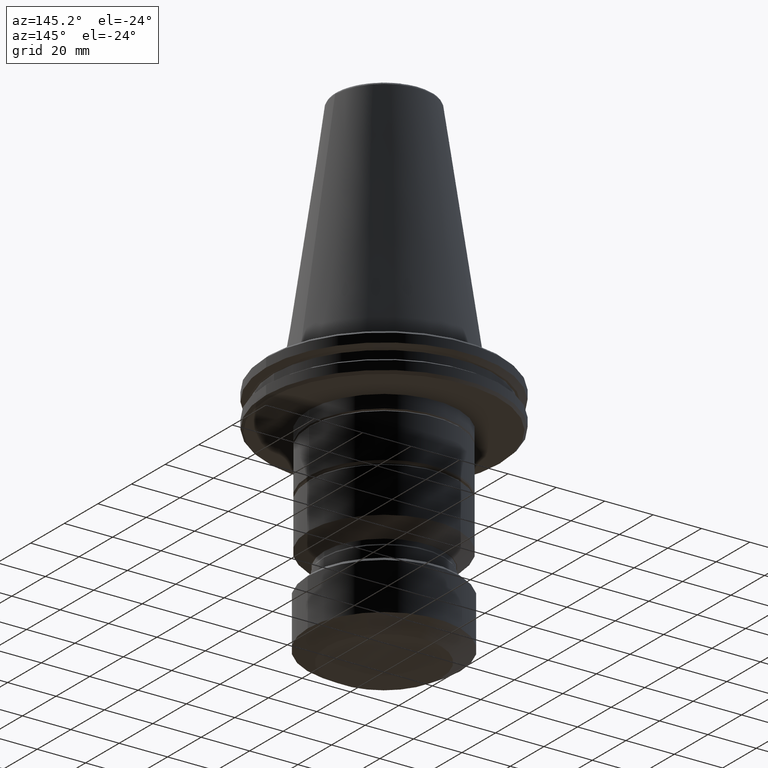
[diagram: clean part render]
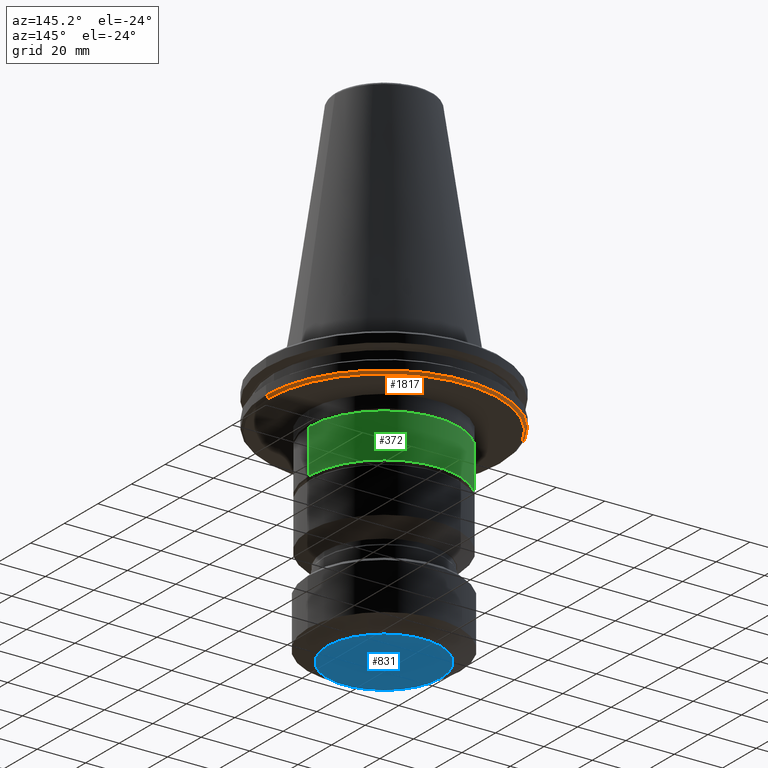
[diagram: same view with three faces highlighted in distinct colors, each labeled with its STEP entity id]
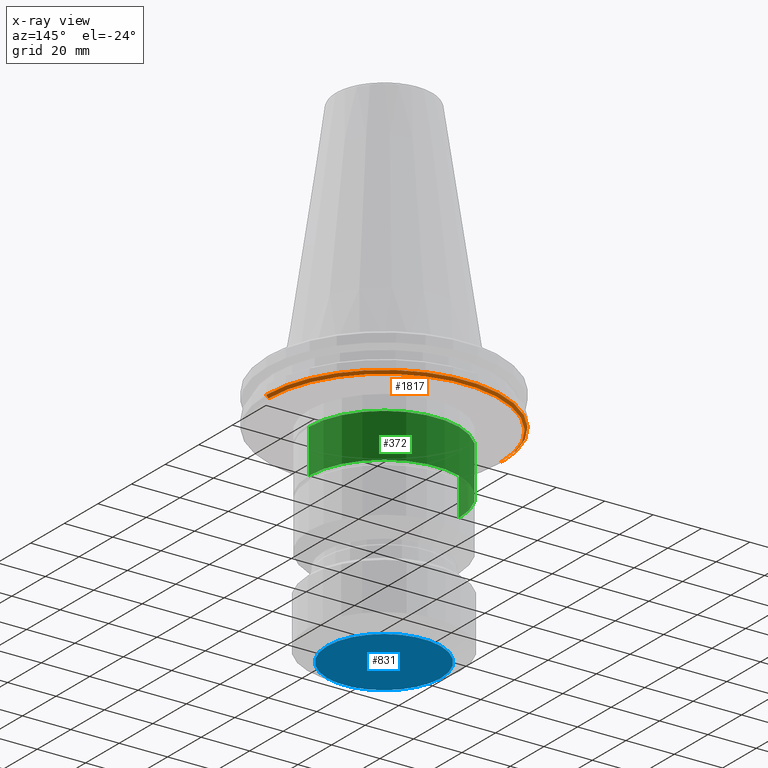
[diagram: x-ray of the same camera — body ghosted, the three highlighted faces saturated]
A machine part, auxiliary view with three faces highlighted in distinct colors.
The next image is the same camera in x-ray (body ghosted, the three faces saturated) — at least one of them is partly hidden behind the body in this view.
Their STEP definitions:

[orange] entity #1817 — the highlighted conical surface has half-angle 45 deg.
#114 = EDGE_CURVE ( 'NONE', #209, #1577, #979, .T. ) ;
#171 = FACE_OUTER_BOUND ( 'NONE', #1070, .T. ) ;
#182 = AXIS2_PLACEMENT_3D ( 'NONE', #1818, #1677, #1766 ) ;
#198 = CIRCLE ( 'NONE', #580, 48.75000000000105900 ) ;
#209 = VERTEX_POINT ( 'NONE', #1060 ) ;
#238 = VECTOR ( 'NONE', #965, 1000.000000000000000 ) ;
#304 = CARTESIAN_POINT ( 'NONE',  ( 48.75000000000117200, 0.0000000000000000000, -18.09999999999882500 ) ) ;
#357 = DIRECTION ( 'NONE',  ( 0.7071067811865506800, 0.0000000000000000000, 0.7071067811865443500 ) ) ;
#580 = AXIS2_PLACEMENT_3D ( 'NONE', #1897, #1903, #1904 ) ;
#608 = DIRECTION ( 'NONE',  ( 0.0000000000000000000, 1.000000000000000000, -1.395044638272431400E-014 ) ) ;
#610 = DIRECTION ( 'NONE',  ( -0.0000000000000000000, -1.396485640209059400E-014, -1.000000000000000000 ) ) ;
#612 = CARTESIAN_POINT ( 'NONE',  ( 0.0000000000000000000, 3.388131798329273300E-018, -19.09999999999933700 ) ) ;
#640 = EDGE_CURVE ( 'NONE', #209, #1699, #771, .T. ) ;
#771 = CIRCLE ( 'NONE', #1256, 47.75000000000056800 ) ;
#871 = ORIENTED_EDGE ( 'NONE', *, *, #1228, .F. ) ;
#965 = DIRECTION ( 'NONE',  ( -0.7071067811865506800, 8.659560562354971100E-017, 0.7071067811865443500 ) ) ;
#976 = CARTESIAN_POINT ( 'NONE',  ( -48.63284271247462700, 5.955805516126872900E-015, -18.21715728752537400 ) ) ;
#979 = LINE ( 'NONE', #976, #238 ) ;
#1054 = LINE ( 'NONE', #1752, #1206 ) ;
#1060 = CARTESIAN_POINT ( 'NONE',  ( -47.75000000000056800, 5.908920805891360400E-015, -19.09999999999933700 ) ) ;
#1070 = EDGE_LOOP ( 'NONE', ( #1513, #1892, #1957, #871 ) ) ;
#1096 = CONICAL_SURFACE ( 'NONE', #182, 48.63284271247462700, 0.7853981633974528300 ) ;
#1206 = VECTOR ( 'NONE', #357, 1000.000000000000000 ) ;
#1228 = EDGE_CURVE ( 'NONE', #1699, #1531, #1054, .T. ) ;
#1256 = AXIS2_PLACEMENT_3D ( 'NONE', #612, #610, #608 ) ;
#1505 = CARTESIAN_POINT ( 'NONE',  ( 47.75000000000056800, 5.281085729656778700E-027, -19.09999999999933700 ) ) ;
#1513 = ORIENTED_EDGE ( 'NONE', *, *, #640, .F. ) ;
#1531 = VERTEX_POINT ( 'NONE', #304 ) ;
#1577 = VERTEX_POINT ( 'NONE', #1973 ) ;
#1613 = EDGE_CURVE ( 'NONE', #1577, #1531, #198, .T. ) ;
#1677 = DIRECTION ( 'NONE',  ( 0.0000000000000000000, 0.0000000000000000000, 1.000000000000000000 ) ) ;
#1699 = VERTEX_POINT ( 'NONE', #1505 ) ;
#1752 = CARTESIAN_POINT ( 'NONE',  ( 48.63284271247462700, 0.0000000000000000000, -18.21715728752537400 ) ) ;
#1766 = DIRECTION ( 'NONE',  ( 1.000000000000000000, 0.0000000000000000000, 0.0000000000000000000 ) ) ;
#1817 = ADVANCED_FACE ( 'NONE', ( #171 ), #1096, .T. ) ;
#1818 = CARTESIAN_POINT ( 'NONE',  ( 0.0000000000000000000, 0.0000000000000000000, -18.21715728752537400 ) ) ;
#1892 = ORIENTED_EDGE ( 'NONE', *, *, #114, .T. ) ;
#1897 = CARTESIAN_POINT ( 'NONE',  ( 0.0000000000000000000, 1.396824453389606200E-014, -18.09999999999882500 ) ) ;
#1903 = DIRECTION ( 'NONE',  ( -0.0000000000000000000, -1.396485640209059400E-014, -1.000000000000000000 ) ) ;
#1904 = DIRECTION ( 'NONE',  ( 0.0000000000000000000, 1.000000000000000000, -1.394895595041833000E-014 ) ) ;
#1957 = ORIENTED_EDGE ( 'NONE', *, *, #1613, .T. ) ;
#1973 = CARTESIAN_POINT ( 'NONE',  ( -48.75000000000117200, 5.970153145843490700E-015, -18.09999999999882500 ) ) ;

[blue] entity #831 — the highlighted planar face has unit normal (-0, 0, -1).
#46 = VERTEX_POINT ( 'NONE', #1202 ) ;
#267 = VERTEX_POINT ( 'NONE', #995 ) ;
#342 = DIRECTION ( 'NONE',  ( -1.000000000000000000, 0.0000000000000000000, 0.0000000000000000000 ) ) ;
#344 = DIRECTION ( 'NONE',  ( -0.0000000000000000000, 0.0000000000000000000, -1.000000000000000000 ) ) ;
#355 = PLANE ( 'NONE',  #477 ) ;
#360 = CARTESIAN_POINT ( 'NONE',  ( 0.0000000000000000000, 0.0000000000000000000, -105.0000000000000100 ) ) ;
#364 = EDGE_LOOP ( 'NONE', ( #744, #565 ) ) ;
#433 = FACE_OUTER_BOUND ( 'NONE', #364, .T. ) ;
#463 = DIRECTION ( 'NONE',  ( -1.000000000000000000, 0.0000000000000000000, 0.0000000000000000000 ) ) ;
#466 = DIRECTION ( 'NONE',  ( -0.0000000000000000000, -0.0000000000000000000, -1.000000000000000000 ) ) ;
#469 = CARTESIAN_POINT ( 'NONE',  ( 0.0000000000000000000, 0.0000000000000000000, -105.0000000000000100 ) ) ;
#477 = AXIS2_PLACEMENT_3D ( 'NONE', #360, #344, #342 ) ;
#515 = DIRECTION ( 'NONE',  ( -1.000000000000000000, 0.0000000000000000000, 0.0000000000000000000 ) ) ;
#519 = DIRECTION ( 'NONE',  ( -0.0000000000000000000, -0.0000000000000000000, -1.000000000000000000 ) ) ;
#523 = CARTESIAN_POINT ( 'NONE',  ( 0.0000000000000000000, 0.0000000000000000000, -105.0000000000000100 ) ) ;
#550 = AXIS2_PLACEMENT_3D ( 'NONE', #469, #466, #463 ) ;
#565 = ORIENTED_EDGE ( 'NONE', *, *, #745, .T. ) ;
#688 = EDGE_CURVE ( 'NONE', #267, #46, #708, .T. ) ;
#708 = CIRCLE ( 'NONE', #1985, 23.50000000000000000 ) ;
#744 = ORIENTED_EDGE ( 'NONE', *, *, #688, .T. ) ;
#745 = EDGE_CURVE ( 'NONE', #46, #267, #1785, .T. ) ;
#831 = ADVANCED_FACE ( 'NONE', ( #433 ), #355, .T. ) ;
#995 = CARTESIAN_POINT ( 'NONE',  ( 23.50000000000000000, 0.0000000000000000000, -105.0000000000000100 ) ) ;
#1202 = CARTESIAN_POINT ( 'NONE',  ( -23.50000000000000000, 3.367778697655221700E-015, -105.0000000000000100 ) ) ;
#1785 = CIRCLE ( 'NONE', #550, 23.50000000000000000 ) ;
#1985 = AXIS2_PLACEMENT_3D ( 'NONE', #523, #519, #515 ) ;

[green] entity #372 — the highlighted cylindrical surface (partial cylindrical patch) has radius 31 mm, axis along (-0, -0, -1).
#21 = VERTEX_POINT ( 'NONE', #1434 ) ;
#50 = VECTOR ( 'NONE', #1975, 1000.000000000000000 ) ;
#88 = AXIS2_PLACEMENT_3D ( 'NONE', #1741, #308, #1598 ) ;
#97 = LINE ( 'NONE', #480, #150 ) ;
#147 = LINE ( 'NONE', #1913, #50 ) ;
#150 = VECTOR ( 'NONE', #479, 1000.000000000000000 ) ;
#308 = DIRECTION ( 'NONE',  ( -0.0000000000000000000, -0.0000000000000000000, -1.000000000000000000 ) ) ;
#315 = CIRCLE ( 'NONE', #88, 31.00000000000023400 ) ;
#331 = VERTEX_POINT ( 'NONE', #948 ) ;
#335 = ORIENTED_EDGE ( 'NONE', *, *, #1507, .F. ) ;
#372 = ADVANCED_FACE ( 'NONE', ( #1400 ), #1164, .T. ) ;
#393 = ORIENTED_EDGE ( 'NONE', *, *, #1638, .F. ) ;
#455 = EDGE_CURVE ( 'NONE', #1727, #331, #1999, .T. ) ;
#479 = DIRECTION ( 'NONE',  ( -0.0000000000000000000, -0.0000000000000000000, -1.000000000000000000 ) ) ;
#480 = CARTESIAN_POINT ( 'NONE',  ( 31.00000000000024200, 3.796405077356824300E-015, -105.0000000000000000 ) ) ;
#483 = ORIENTED_EDGE ( 'NONE', *, *, #455, .T. ) ;
#748 = EDGE_CURVE ( 'NONE', #331, #21, #97, .T. ) ;
#821 = DIRECTION ( 'NONE',  ( -1.000000000000000000, 0.0000000000000000000, 0.0000000000000000000 ) ) ;
#824 = DIRECTION ( 'NONE',  ( -0.0000000000000000000, -0.0000000000000000000, -1.000000000000000000 ) ) ;
#826 = CARTESIAN_POINT ( 'NONE',  ( 0.0000000000000000000, 0.0000000000000000000, -25.39999999999867300 ) ) ;
#890 = DIRECTION ( 'NONE',  ( -0.0000000000000000000, -0.0000000000000000000, -1.000000000000000000 ) ) ;
#897 = CARTESIAN_POINT ( 'NONE',  ( 0.0000000000000000000, 0.0000000000000000000, -105.0000000000000000 ) ) ;
#898 = DIRECTION ( 'NONE',  ( -1.000000000000000000, 0.0000000000000000000, 0.0000000000000000000 ) ) ;
#948 = CARTESIAN_POINT ( 'NONE',  ( 31.00000000000024900, 3.796405077356825100E-015, -25.39999999999867300 ) ) ;
#1128 = ORIENTED_EDGE ( 'NONE', *, *, #748, .T. ) ;
#1164 = CYLINDRICAL_SURFACE ( 'NONE', #1387, 31.00000000000024200 ) ;
#1262 = VERTEX_POINT ( 'NONE', #1717 ) ;
#1276 = EDGE_LOOP ( 'NONE', ( #483, #1128, #335, #393 ) ) ;
#1387 = AXIS2_PLACEMENT_3D ( 'NONE', #897, #890, #898 ) ;
#1400 = FACE_OUTER_BOUND ( 'NONE', #1276, .T. ) ;
#1434 = CARTESIAN_POINT ( 'NONE',  ( 31.00000000000023400, 0.0000000000000000000, -43.59999999999889300 ) ) ;
#1507 = EDGE_CURVE ( 'NONE', #1262, #21, #315, .T. ) ;
#1545 = CARTESIAN_POINT ( 'NONE',  ( -31.00000000000024900, 0.0000000000000000000, -25.39999999999867300 ) ) ;
#1571 = AXIS2_PLACEMENT_3D ( 'NONE', #826, #824, #821 ) ;
#1598 = DIRECTION ( 'NONE',  ( -1.000000000000000000, 0.0000000000000000000, 0.0000000000000000000 ) ) ;
#1638 = EDGE_CURVE ( 'NONE', #1727, #1262, #147, .T. ) ;
#1717 = CARTESIAN_POINT ( 'NONE',  ( -31.00000000000023400, 3.796405077356823500E-015, -43.59999999999889300 ) ) ;
#1727 = VERTEX_POINT ( 'NONE', #1545 ) ;
#1741 = CARTESIAN_POINT ( 'NONE',  ( 0.0000000000000000000, 0.0000000000000000000, -43.59999999999889300 ) ) ;
#1913 = CARTESIAN_POINT ( 'NONE',  ( -31.00000000000024200, 0.0000000000000000000, -105.0000000000000000 ) ) ;
#1975 = DIRECTION ( 'NONE',  ( -0.0000000000000000000, -0.0000000000000000000, -1.000000000000000000 ) ) ;
#1999 = CIRCLE ( 'NONE', #1571, 31.00000000000024900 ) ;